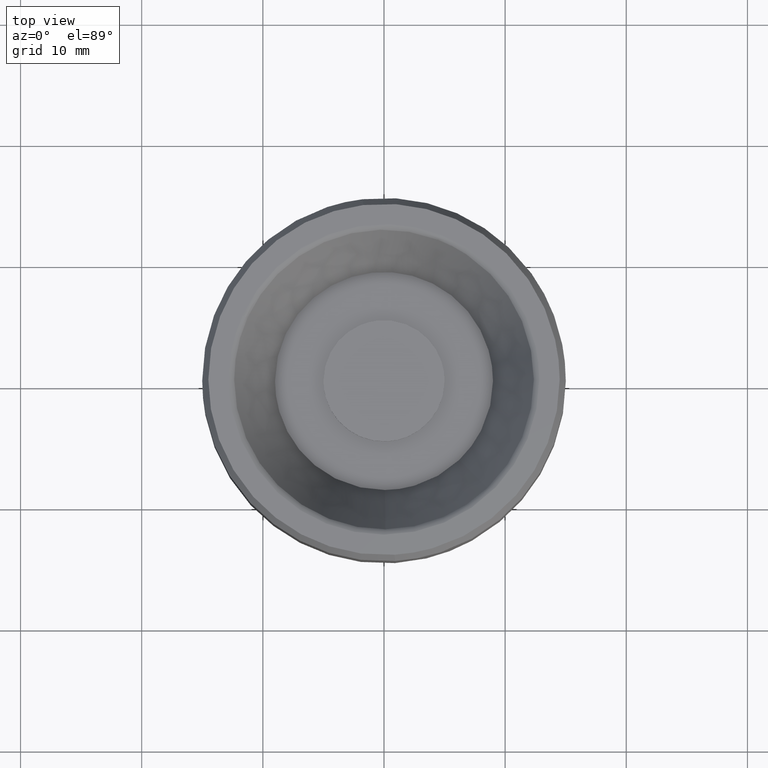
[diagram: clean part render]
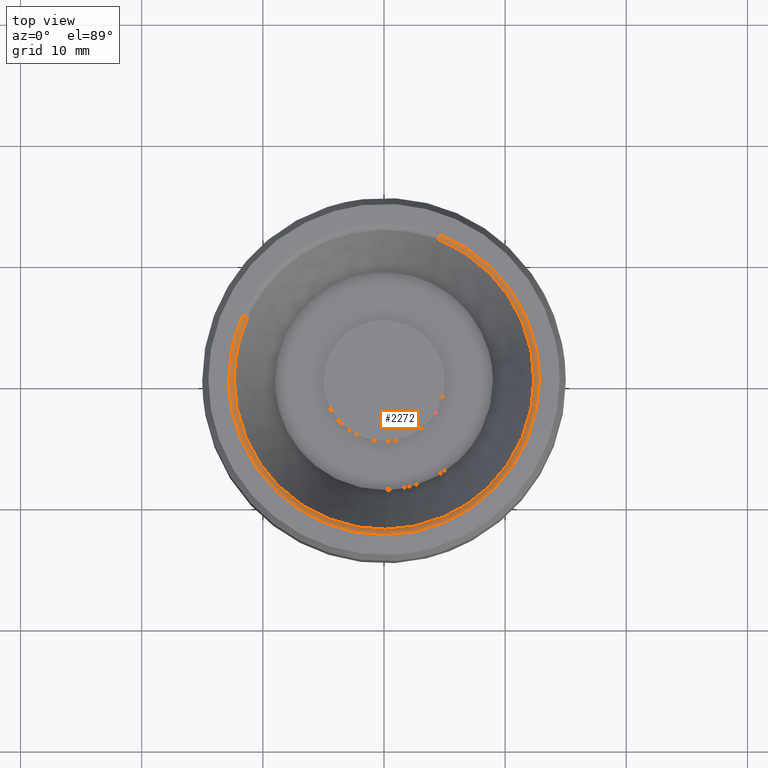
[diagram: same view with one face highlighted and labeled with its STEP entity id]
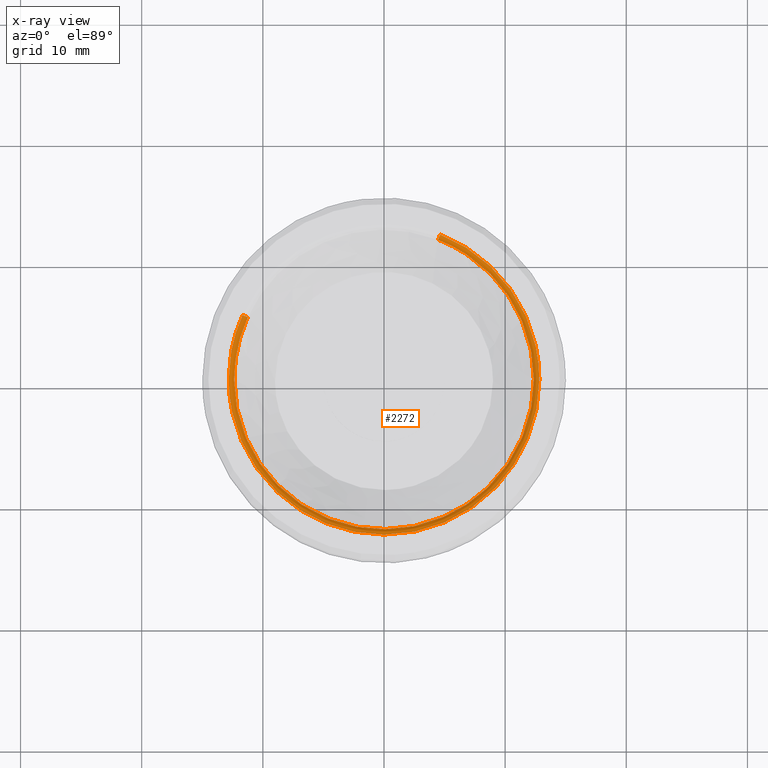
[diagram: x-ray of the same camera — body ghosted, the highlighted face saturated]
A machine part, top view. The second image highlights one B-rep face of the part: STEP entity #2272.
The next image is the same camera in x-ray: the body ghosted, the highlighted face saturated — about 0% of this face is hidden behind the body in this view.
In plain terms, the highlighted face is a freeform B-spline surface patch.
Its self-contained STEP definition (entity closure, byte-faithful):
#679=CARTESIAN_POINT('',(8.527623674305284,-8.954399273454229,17.711442732665549));
#680=VERTEX_POINT('',#679);
#681=CARTESIAN_POINT('',(12.365339941910600,0.0,17.711442732665549));
#682=VERTEX_POINT('',#681);
#683=CARTESIAN_POINT('',(8.527623674305284,-8.954399273454229,17.711442732665557));
#684=CARTESIAN_POINT('',(12.365339941910603,-5.299592390326016,17.711442732665546));
#685=CARTESIAN_POINT('',(12.365339941910600,0.0,17.711442732665549));
#693=(BOUNDED_CURVE()B_SPLINE_CURVE(2,(#683,#684,#685),.UNSPECIFIED.,.F.,.U.)B_SPLINE_CURVE_WITH_KNOTS((3,3),(0.871317023849513,1.0),.UNSPECIFIED.)CURVE()GEOMETRIC_REPRESENTATION_ITEM()RATIONAL_B_SPLINE_CURVE((0.853680523245778,0.849238515635157,1.0))REPRESENTATION_ITEM(''));
#694=EDGE_CURVE('',#680,#682,#693,.T.);
#696=CARTESIAN_POINT('',(4.471879109759468,11.528396641447490,17.711442734037320));
#697=VERTEX_POINT('',#696);
#698=CARTESIAN_POINT('',(12.365339941910600,0.0,17.711442732665549));
#699=CARTESIAN_POINT('',(12.365339941910600,8.466513562217843,17.711442732665542));
#700=CARTESIAN_POINT('',(4.471879109759468,11.528396641447497,17.711442734037316));
#708=(BOUNDED_CURVE()B_SPLINE_CURVE(2,(#698,#699,#700),.UNSPECIFIED.,.F.,.U.)B_SPLINE_CURVE_WITH_KNOTS((3,3),(0.0,0.188590655709449),.UNSPECIFIED.)CURVE()GEOMETRIC_REPRESENTATION_ITEM()RATIONAL_B_SPLINE_CURVE((1.0,0.779052303244480,0.891453974557887))REPRESENTATION_ITEM(''));
#709=EDGE_CURVE('',#682,#697,#708,.T.);
#711=CARTESIAN_POINT('',(-11.253769711002420,5.123894922761965,17.711442733425621));
#712=VERTEX_POINT('',#711);
#728=CARTESIAN_POINT('',(-12.365339941910600,0.0,17.711442732665549));
#729=VERTEX_POINT('',#728);
#730=CARTESIAN_POINT('',(-11.253769711002422,5.123894922761966,17.711442733425617));
#731=CARTESIAN_POINT('',(-12.365339941910596,2.682518667163292,17.711442732665542));
#732=CARTESIAN_POINT('',(-12.365339941910600,0.0,17.711442732665549));
#740=(BOUNDED_CURVE()B_SPLINE_CURVE(2,(#730,#731,#732),.UNSPECIFIED.,.F.,.U.)B_SPLINE_CURVE_WITH_KNOTS((3,3),(0.429624510041753,0.500000000000000),.UNSPECIFIED.)CURVE()GEOMETRIC_REPRESENTATION_ITEM()RATIONAL_B_SPLINE_CURVE((0.881519651452271,0.917549984882221,1.0))REPRESENTATION_ITEM(''));
#741=EDGE_CURVE('',#712,#729,#740,.T.);
#743=CARTESIAN_POINT('',(0.107906577977246,-12.364869107657009,17.711442732670051));
#744=VERTEX_POINT('',#743);
#745=CARTESIAN_POINT('',(-12.365339941910600,0.0,17.711442732665549));
#746=CARTESIAN_POINT('',(-12.365339941910600,-12.365339941910600,17.711442732665539));
#747=CARTESIAN_POINT('',(0.0,-12.365339941910600,17.711442732665549));
#748=CARTESIAN_POINT('',(0.053954316208481,-12.365339941910598,17.711442732665549));
#749=CARTESIAN_POINT('',(0.107906577977246,-12.364869107657007,17.711442732670051));
#757=(BOUNDED_CURVE()B_SPLINE_CURVE(2,(#745,#746,#747,#748,#749),.UNSPECIFIED.,.F.,.U.)B_SPLINE_CURVE_WITH_KNOTS((3,2,3),(0.500000000000000,0.750000000000000,0.751539894335691),.UNSPECIFIED.)CURVE()GEOMETRIC_REPRESENTATION_ITEM()RATIONAL_B_SPLINE_CURVE((1.0,0.707106781186548,1.0,0.998195901565548,0.996414028098778))REPRESENTATION_ITEM(''));
#758=EDGE_CURVE('',#729,#744,#757,.T.);
#838=CARTESIAN_POINT('',(0.107906577977246,-12.364869107657013,17.711442732670051));
#839=CARTESIAN_POINT('',(4.991221425312867,-12.322253064582066,17.711442732665546));
#840=CARTESIAN_POINT('',(8.527623674305284,-8.954399273454229,17.711442732665553));
#848=(BOUNDED_CURVE()B_SPLINE_CURVE(2,(#838,#839,#840),.UNSPECIFIED.,.F.,.U.)B_SPLINE_CURVE_WITH_KNOTS((3,3),(0.751539894335690,0.871317023849513),.UNSPECIFIED.)CURVE()GEOMETRIC_REPRESENTATION_ITEM()RATIONAL_B_SPLINE_CURVE((0.996414028098778,0.857815109939333,0.853680523245778))REPRESENTATION_ITEM(''));
#849=EDGE_CURVE('',#744,#680,#848,.T.);
#2155=CARTESIAN_POINT('',(4.468044806333452,11.518510014214057,17.687046280895451));
#2156=CARTESIAN_POINT('',(4.797699296143438,11.390636614854031,17.687046280895437));
#2157=CARTESIAN_POINT('',(5.119500836063273,11.244118841799038,17.687046280895451));
#2158=CARTESIAN_POINT('',(16.363619677862314,6.124618005735771,17.687046280895448));
#2159=CARTESIAN_POINT('',(11.244118841799038,-5.119500836063272,17.687046280895451));
#2160=CARTESIAN_POINT('',(6.124618005735771,-16.363619677862314,17.687046280895448));
#2161=CARTESIAN_POINT('',(-5.119500836063272,-11.244118841799038,17.687046280895451));
#2162=CARTESIAN_POINT('',(-16.363619677862314,-6.124618005735771,17.687046280895448));
#2163=CARTESIAN_POINT('',(-11.244118841799038,5.119500836063272,17.687046280895451));
#2164=CARTESIAN_POINT('',(4.516369576569805,11.643090087608357,18.018306831510031));
#2165=CARTESIAN_POINT('',(4.849589491116552,11.513833655420497,18.018306831510035));
#2166=CARTESIAN_POINT('',(5.174871521083463,11.365731198678274,18.018306831510042));
#2167=CARTESIAN_POINT('',(16.540602719761733,6.190859677594810,18.018306831510039));
#2168=CARTESIAN_POINT('',(11.365731198678274,-5.174871521083463,18.018306831510042));
#2169=CARTESIAN_POINT('',(6.190859677594813,-16.540602719761733,18.018306831510039));
#2170=CARTESIAN_POINT('',(-5.174871521083463,-11.365731198678274,18.018306831510042));
#2171=CARTESIAN_POINT('',(-16.540602719761733,-6.190859677594813,18.018306831510039));
#2172=CARTESIAN_POINT('',(-11.365731198678274,5.174871521083463,18.018306831510042));
#2173=CARTESIAN_POINT('',(4.645365037537593,11.975637224745272,17.999290966276870));
#2174=CARTESIAN_POINT('',(4.988102299093230,11.842689001447209,17.999290966276874));
#2175=CARTESIAN_POINT('',(5.322674956119937,11.690356477976829,17.999290966276874));
#2176=CARTESIAN_POINT('',(17.013031434096757,6.367681521856891,17.999290966276870));
#2177=CARTESIAN_POINT('',(11.690356477976829,-5.322674956119936,17.999290966276874));
#2178=CARTESIAN_POINT('',(6.367681521856892,-17.013031434096757,17.999290966276870));
#2179=CARTESIAN_POINT('',(-5.322674956119936,-11.690356477976829,17.999290966276874));
#2180=CARTESIAN_POINT('',(-17.013031434096757,-6.367681521856892,17.999290966276870));
#2181=CARTESIAN_POINT('',(-11.690356477976829,5.322674956119935,17.999290966276874));
#2189=(BOUNDED_SURFACE()B_SPLINE_SURFACE(2,2,((#2155,#2164,#2173),(#2156,#2165,#2174),(#2157,#2166,#2175),(#2158,#2167,#2176),(#2159,#2168,#2177),(#2160,#2169,#2178),(#2161,#2170,#2179),(#2162,#2171,#2180),(#2163,#2172,#2181)),.UNSPECIFIED.,.F.,.F.,.U.)B_SPLINE_SURFACE_WITH_KNOTS((3,2,2,2,3),(3,3),(0.0,0.851294199162929,22.133669474690841,43.416044750218752,64.698420025746657),(0.0,0.641007763323164),.UNSPECIFIED.)GEOMETRIC_REPRESENTATION_ITEM()RATIONAL_B_SPLINE_SURFACE(((0.899122579054267,0.731240888295081,0.898217250236592),(0.909036747851133,0.739303910809046,0.908121436431615),(0.919813017388853,0.748068064988733,0.918886855316058),(0.650406022019318,0.528964001542632,0.649751126537166),(0.919813017388853,0.748068064988733,0.918886855316058),(0.650406022019318,0.528964001542632,0.649751126537166),(0.919813017388853,0.748068064988733,0.918886855316058),(0.650406022019318,0.528964001542632,0.649751126537166),(0.919813017388853,0.748068064988733,0.918886855316058)))REPRESENTATION_ITEM('')SURFACE());
#2190=ORIENTED_EDGE('',*,*,#709,.F.);
#2191=ORIENTED_EDGE('',*,*,#694,.F.);
#2192=ORIENTED_EDGE('',*,*,#849,.F.);
#2193=ORIENTED_EDGE('',*,*,#758,.F.);
#2194=ORIENTED_EDGE('',*,*,#741,.F.);
#2195=CARTESIAN_POINT('',(-11.666131053621729,5.311645005093981,18.0));
#2196=VERTEX_POINT('',#2195);
#2197=CARTESIAN_POINT('',(-11.253769711002423,5.123894922761966,17.711442733425621));
#2198=CARTESIAN_POINT('',(-11.376324634528537,5.179694762855919,17.999999999748383));
#2199=CARTESIAN_POINT('',(-11.666131053621735,5.311645005093981,17.999999999999993));
#2207=(BOUNDED_CURVE()B_SPLINE_CURVE(2,(#2197,#2198,#2199),.UNSPECIFIED.,.F.,.U.)B_SPLINE_CURVE_WITH_KNOTS((3,3),(-1.654397944024041,-0.349483708127034),.UNSPECIFIED.)CURVE()GEOMETRIC_REPRESENTATION_ITEM()RATIONAL_B_SPLINE_CURVE((0.904920546409446,0.762918607808469,0.904078242219067))REPRESENTATION_ITEM(''));
#2208=EDGE_CURVE('',#712,#2196,#2207,.T.);
#2209=ORIENTED_EDGE('',*,*,#2208,.T.);
#2210=CARTESIAN_POINT('',(-12.818431511908219,0.0,18.0));
#2211=VERTEX_POINT('',#2210);
#2212=CARTESIAN_POINT('',(-12.818431511908219,0.0,18.0));
#2213=CARTESIAN_POINT('',(-12.818431511908218,2.780811686211568,18.000000000000004));
#2214=CARTESIAN_POINT('',(-11.666131053621728,5.311645005093982,18.000000000000004));
#2222=(BOUNDED_CURVE()B_SPLINE_CURVE(2,(#2212,#2213,#2214),.UNSPECIFIED.,.F.,.U.)B_SPLINE_CURVE_WITH_KNOTS((3,3),(0.0,0.070375489958239),.UNSPECIFIED.)CURVE()GEOMETRIC_REPRESENTATION_ITEM()RATIONAL_B_SPLINE_CURVE((1.0,0.917549984882230,0.881519651452279))REPRESENTATION_ITEM(''));
#2223=EDGE_CURVE('',#2211,#2196,#2222,.T.);
#2224=ORIENTED_EDGE('',*,*,#2223,.F.);
#2225=CARTESIAN_POINT('',(12.818431511908219,0.0,18.0));
#2226=VERTEX_POINT('',#2225);
#2227=CARTESIAN_POINT('',(12.818431511908219,0.0,18.0));
#2228=CARTESIAN_POINT('',(12.818431511908221,-12.818431511908221,18.000000000000007));
#2229=CARTESIAN_POINT('',(0.0,-12.818431511908219,18.0));
#2230=CARTESIAN_POINT('',(-12.818431511908221,-12.818431511908221,18.000000000000007));
#2231=CARTESIAN_POINT('',(-12.818431511908219,0.0,18.0));
#2239=(BOUNDED_CURVE()B_SPLINE_CURVE(2,(#2227,#2228,#2229,#2230,#2231),.UNSPECIFIED.,.F.,.U.)B_SPLINE_CURVE_WITH_KNOTS((3,2,3),(0.500000000000000,0.750000000000000,1.0),.UNSPECIFIED.)CURVE()GEOMETRIC_REPRESENTATION_ITEM()RATIONAL_B_SPLINE_CURVE((1.0,0.707106781186547,1.0,0.707106781186547,1.0))REPRESENTATION_ITEM(''));
#2240=EDGE_CURVE('',#2226,#2211,#2239,.T.);
#2241=ORIENTED_EDGE('',*,*,#2240,.F.);
#2242=CARTESIAN_POINT('',(4.635737986679008,11.950820879586651,18.0));
#2243=VERTEX_POINT('',#2242);
#2244=CARTESIAN_POINT('',(4.635737986679007,11.950820879586651,17.999999999999996));
#2245=CARTESIAN_POINT('',(12.818431511908219,8.776744088819109,18.000000000000004));
#2246=CARTESIAN_POINT('',(12.818431511908219,0.0,18.0));
#2254=(BOUNDED_CURVE()B_SPLINE_CURVE(2,(#2244,#2245,#2246),.UNSPECIFIED.,.F.,.U.)B_SPLINE_CURVE_WITH_KNOTS((3,3),(0.311409344291267,0.500000000000000),.UNSPECIFIED.)CURVE()GEOMETRIC_REPRESENTATION_ITEM()RATIONAL_B_SPLINE_CURVE((0.891453974557034,0.779052303245319,1.0))REPRESENTATION_ITEM(''));
#2255=EDGE_CURVE('',#2243,#2226,#2254,.T.);
#2256=ORIENTED_EDGE('',*,*,#2255,.F.);
#2257=CARTESIAN_POINT('',(4.471879109759468,11.528396641447490,17.711442734037323));
#2258=CARTESIAN_POINT('',(4.520578418058027,11.653942285395942,17.999999997596394));
#2259=CARTESIAN_POINT('',(4.635737986679008,11.950820879586649,18.0));
#2267=(BOUNDED_CURVE()B_SPLINE_CURVE(2,(#2257,#2258,#2259),.UNSPECIFIED.,.F.,.U.)B_SPLINE_CURVE_WITH_KNOTS((3,3),(-1.654397940742951,-0.349483716331661),.UNSPECIFIED.)CURVE()GEOMETRIC_REPRESENTATION_ITEM()RATIONAL_B_SPLINE_CURVE((0.884565082675891,0.745757365887022,0.883741724406651))REPRESENTATION_ITEM(''));
#2268=EDGE_CURVE('',#697,#2243,#2267,.T.);
#2269=ORIENTED_EDGE('',*,*,#2268,.F.);
#2270=EDGE_LOOP('',(#2190,#2191,#2192,#2193,#2194,#2209,#2224,#2241,#2256,#2269));
#2271=FACE_OUTER_BOUND('',#2270,.T.);
#2272=ADVANCED_FACE('',(#2271),#2189,.T.);